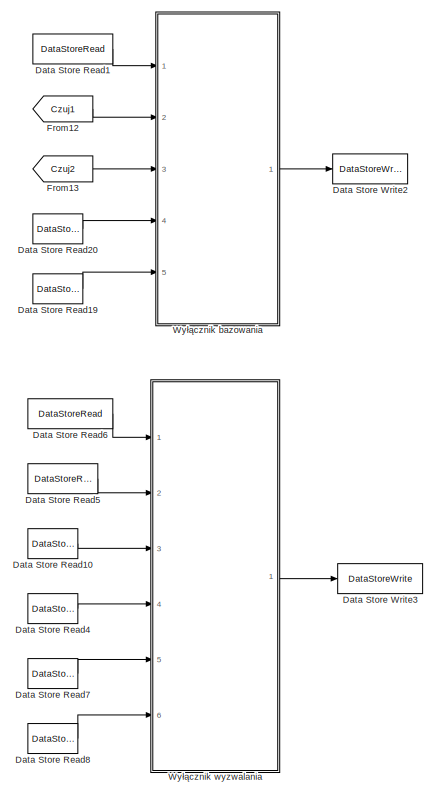
[diagram: root canvas - part 1/4, top right region]
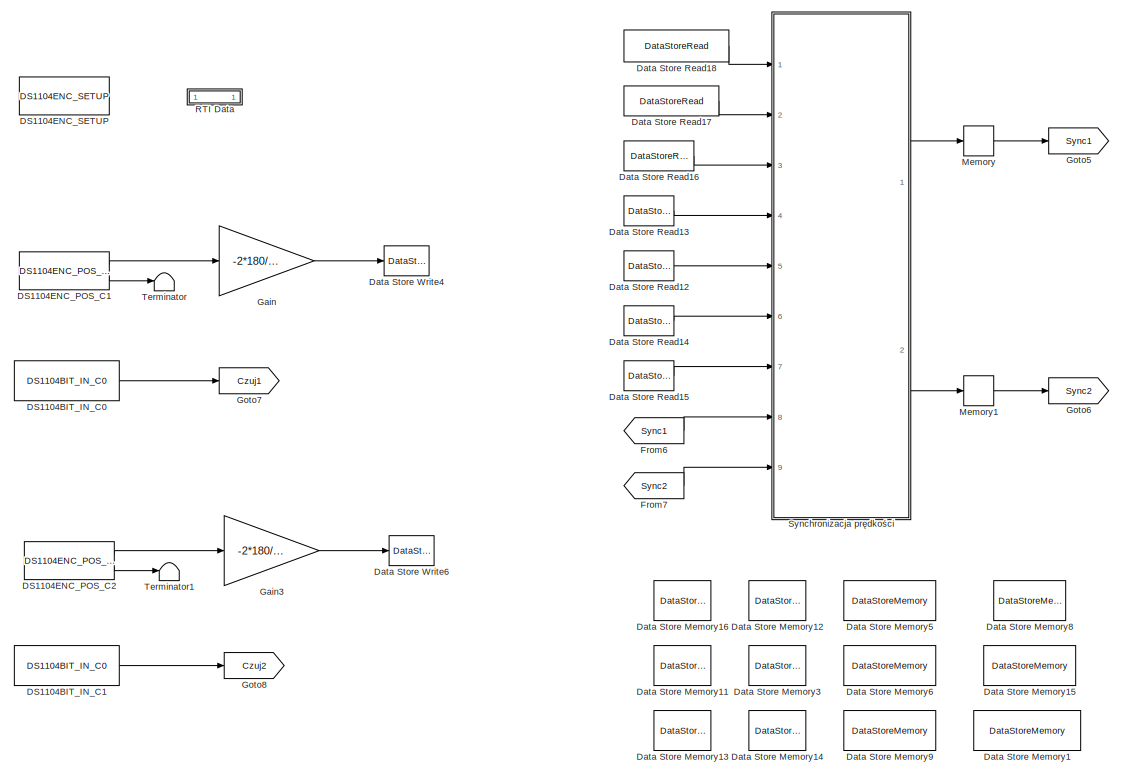
[diagram: root canvas - part 2/4, top center region]
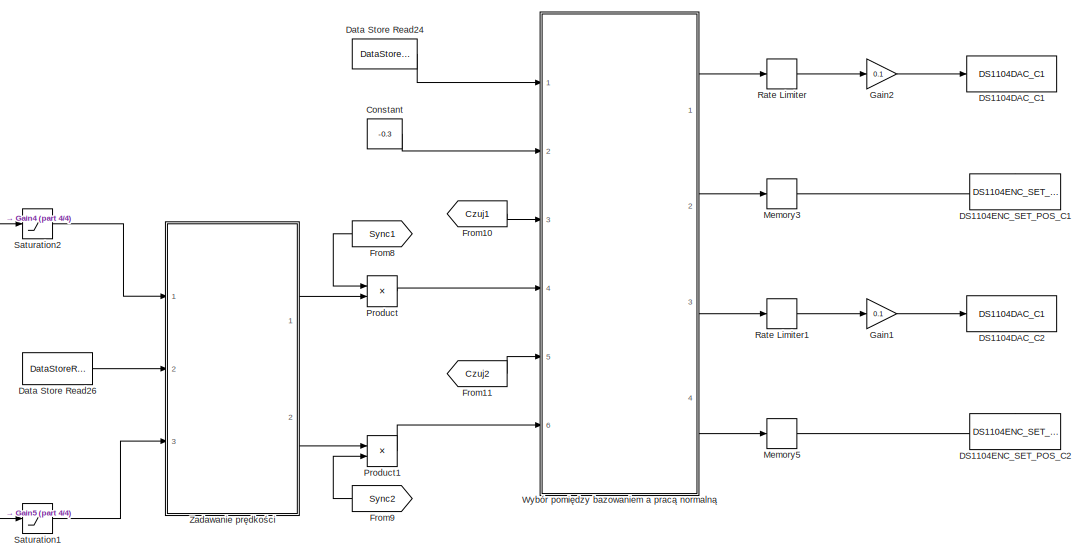
[diagram: root canvas - part 3/4, bottom right region]
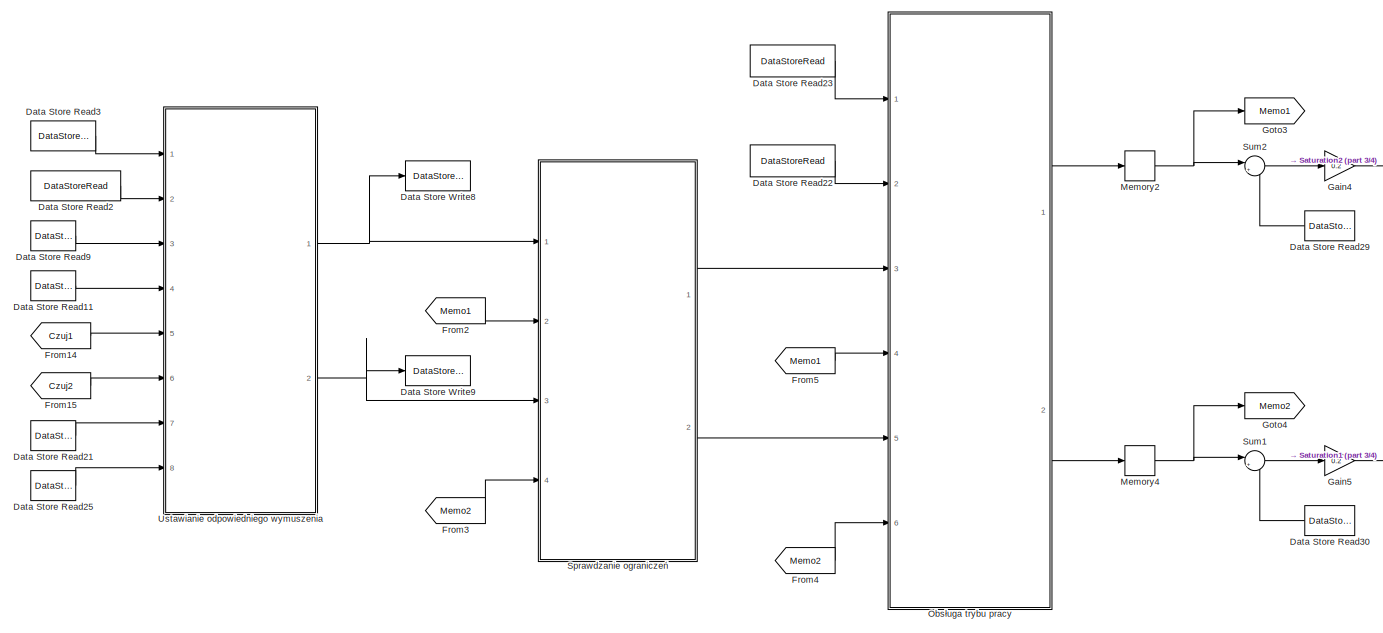
[diagram: root canvas - part 4/4, bottom left region]
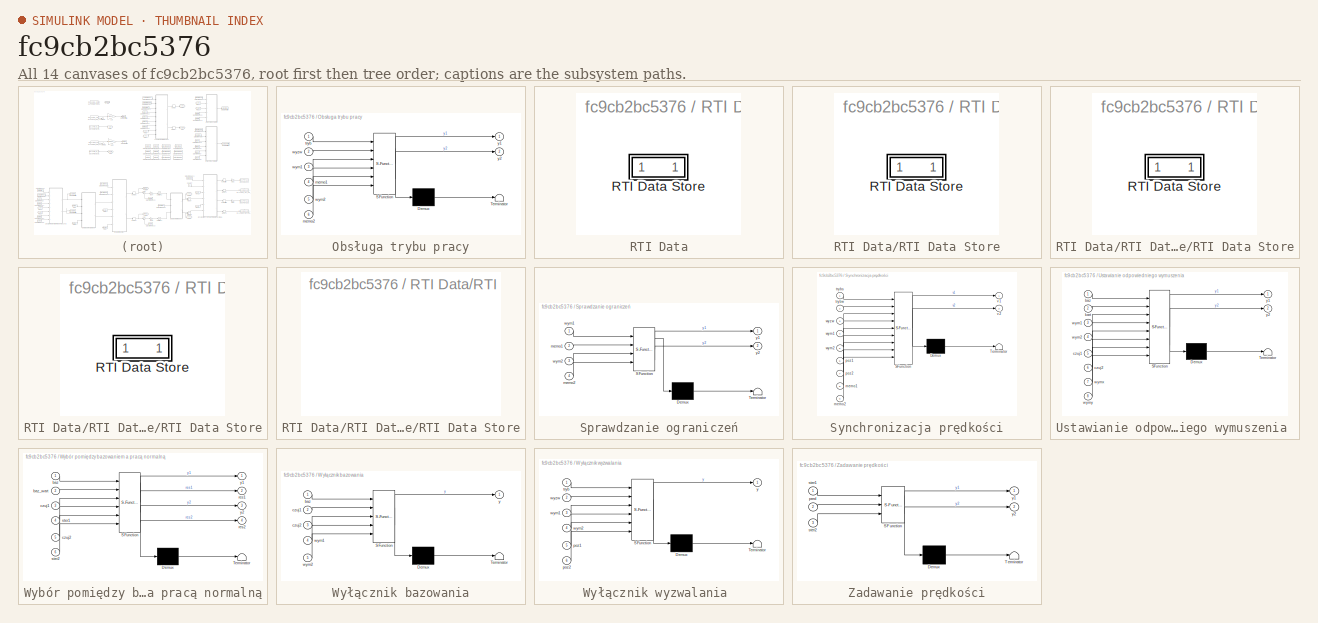
[diagram: thumbnail index - all 14 canvases of the model, root first then tree order]
MODEL slx_fc9cb2bc5376
KIND model
CONFIG AbsTol = auto
CONFIG FixedStep = 0.001
CONFIG MaxStep = auto
CONFIG MinStep = auto
CONFIG PostLoadFcn = , if any(exist('dsrtsu_mdlpostloadfcn', 'file') == [2, 3, 6]), try dsrtsu_mdlpostloadfcn('Execute', bdroot); catch fprintf('Error in PostLoadFcn (dsrtsu_mdlpostloadfcn) for model "%s":\n %s\n', bdroot, lasterr); end, end, \n
CONFIG RelTol = 1e-3
CONFIG SampleTimeConstraint = Unconstrained
CONFIG Solver = ode1
CONFIG SolverMode = Auto
CONFIG SolverName = ode1
CONFIG StartTime = 0.0
CONFIG StopTime = Inf
BLOCK [Constant] Constant
  Value = -0.3
BLOCK [Reference] DS1104BIT_IN_C0  REF=rtilib1104/DS1104 MASTER PPC/DS1104BIT_IN_C0
  ChannelNo = 0
  DSProperties = struct('RTI',struct('Version',uint32(1),'BlockType',struct('isSLSource',uint8(1),'isSLSink',uint8(0),'isHWSource',uint8(1),'isHWSink',uint8(0),'isSetup',uint8(0),'isInline',uint8(1),'isNonInline',uint8(0),'isInterrupt',uint8(0),'isChannelwise',uint8(1)),'IOBoardType','DS1104MASTER','UnitType','BIT','Identifier','BITINCH','DialogType','ML','BlockSet','NONE','SlaveProcessor','NONE'))
  DialogFcn = gui1104bit_in
  Ports = [0, 1]
  Reserved1 = []
  Reserved2 = []
  Reserved3 = []
  Reserved4 = []
  SourceBlock = rtilib1104/DS1104 MASTER PPC/DS1104BIT_IN_C0
  SourceType = RTI
  UnitName = {'DS1104BIT_IN_C'}
  UnitValues = { 0 }
BLOCK [Reference] DS1104BIT_IN_C1  REF=rtilib1104/DS1104 MASTER PPC/DS1104BIT_IN_C0
  ChannelNo = 1
  DSProperties = struct('RTI',struct('Version',uint32(1),'BlockType',struct('isSLSource',uint8(1),'isSLSink',uint8(0),'isHWSource',uint8(1),'isHWSink',uint8(0),'isSetup',uint8(0),'isInline',uint8(1),'isNonInline',uint8(0),'isInterrupt',uint8(0),'isChannelwise',uint8(1)),'IOBoardType','DS1104MASTER','UnitType','BIT','Identifier','BITINCH','DialogType','ML','BlockSet','NONE','SlaveProcessor','NONE'))
  DialogFcn = gui1104bit_in
  Ports = [0, 1]
  Reserved1 = []
  Reserved2 = []
  Reserved3 = []
  Reserved4 = []
  SourceBlock = rtilib1104/DS1104 MASTER PPC/DS1104BIT_IN_C0
  SourceType = RTI
  UnitName = {'DS1104BIT_IN_C'}
  UnitValues = {1}
BLOCK [Reference] DS1104DAC_C1  REF=rtilib1104/DS1104 MASTER PPC/DS1104DAC_C1
  ChannelNo = 1
  DSProperties = struct('RTI',struct('Version',uint32(1),'BlockType',struct('isSLSource',uint8(0),'isSLSink',uint8(1),'isHWSource',uint8(0),'isHWSink',uint8(1),'isSetup',uint8(0),'isInline',uint8(1),'isNonInline',uint8(0),'isInterrupt',uint8(0),'isChannelwise',uint8(1)),'IOBoardType','DS1104MASTER','UnitType','DAC','Identifier','DAC','DialogType','ML','BlockSet','NONE','SlaveProcessor','NONE'))
  DialogFcn = gui1104dac
  InitValue = 0
  Ports = [1]
  Reserved1 = []
  Reserved2 = []
  Reserved3 = []
  Reserved4 = []
  SourceBlock = rtilib1104/DS1104 MASTER PPC/DS1104DAC_C1
  SourceType = RTI
  TermMode = 0
  TermValue = 0
  UnitName = { 'DS1104DAC_C'}
  UnitValues = { 1 }
BLOCK [Reference] DS1104DAC_C2  REF=rtilib1104/DS1104 MASTER PPC/DS1104DAC_C1
  ChannelNo = 2
  DSProperties = struct('RTI',struct('Version',uint32(1),'BlockType',struct('isSLSource',uint8(0),'isSLSink',uint8(1),'isHWSource',uint8(0),'isHWSink',uint8(1),'isSetup',uint8(0),'isInline',uint8(1),'isNonInline',uint8(0),'isInterrupt',uint8(0),'isChannelwise',uint8(1)),'IOBoardType','DS1104MASTER','UnitType','DAC','Identifier','DAC','DialogType','ML','BlockSet','NONE','SlaveProcessor','NONE'))
  DialogFcn = gui1104dac
  InitValue = 0
  Ports = [1]
  Reserved1 = []
  Reserved2 = []
  Reserved3 = []
  Reserved4 = []
  SourceBlock = rtilib1104/DS1104 MASTER PPC/DS1104DAC_C1
  SourceType = RTI
  TermMode = 0
  TermValue = 0
  UnitName = { 'DS1104DAC_C'}
  UnitValues = {2}
BLOCK [Reference] DS1104ENC_POS_C1  REF=rtilib1104/DS1104 MASTER PPC/DS1104ENC_POS_C1
  ChannelNo = 1
  DSProperties = struct('RTI',struct('Version',uint32(1),'BlockType',struct('isSLSource',uint8(1),'isSLSink',uint8(0),'isHWSource',uint8(1),'isHWSink',uint8(0),'isSetup',uint8(0),'isInline',uint8(1),'isNonInline',uint8(0),'isInterrupt',uint8(0),'isChannelwise',uint8(1)),'IOBoardType','DS1104MASTER','UnitType','ENC','Identifier','ENCPOSCH','DialogType','ML','BlockSet','NONE','SlaveProcessor','NONE'))
  DialogFcn = gui1104enc_pos
  Ports = [0, 2]
  PosValue = 0
  Reserved1 = []
  Reserved2 = []
  Reserved3 = []
  Reserved4 = []
  SourceBlock = rtilib1104/DS1104 MASTER PPC/DS1104ENC_POS_C1
  SourceType = RTI
  UnitName = {'DS1104ENC_POS_C'}
  UnitValues = { 1 }
BLOCK [Reference] DS1104ENC_POS_C2  REF=rtilib1104/DS1104 MASTER PPC/DS1104ENC_POS_C1
  ChannelNo = 2
  DSProperties = struct('RTI',struct('Version',uint32(1),'BlockType',struct('isSLSource',uint8(1),'isSLSink',uint8(0),'isHWSource',uint8(1),'isHWSink',uint8(0),'isSetup',uint8(0),'isInline',uint8(1),'isNonInline',uint8(0),'isInterrupt',uint8(0),'isChannelwise',uint8(1)),'IOBoardType','DS1104MASTER','UnitType','ENC','Identifier','ENCPOSCH','DialogType','ML','BlockSet','NONE','SlaveProcessor','NONE'))
  DialogFcn = gui1104enc_pos
  Ports = [0, 2]
  PosValue = 0
  Reserved1 = []
  Reserved2 = []
  Reserved3 = []
  Reserved4 = []
  SourceBlock = rtilib1104/DS1104 MASTER PPC/DS1104ENC_POS_C1
  SourceType = RTI
  UnitName = {'DS1104ENC_POS_C'}
  UnitValues = {2}
BLOCK [Reference] DS1104ENC_SETUP  REF=rtilib1104/DS1104 MASTER PPC/DS1104ENC_SETUP
  DSProperties = struct('RTI',struct('Version',uint32(1),'BlockType',struct('isSLSource',uint8(0),'isSLSink',uint8(0),'isHWSource',uint8(0),'isHWSink',uint8(0),'isSetup',uint8(0),'isInline',uint8(1),'isNonInline',uint8(0),'isInterrupt',uint8(0),'isChannelwise',uint8(0)),'IOBoardType','DS1104MASTER','UnitType','ENC','Identifier','ENCSETUP','DialogType','ML','BlockSet','NONE','SlaveProcessor','NONE'))
  DialogFcn = gui1104enc_setup
  Ports = []
  Reserved1 = []
  Reserved2 = []
  Reserved3 = []
  Reserved4 = []
  SignalType = [0 0]
  SourceBlock = rtilib1104/DS1104 MASTER PPC/DS1104ENC_SETUP
  SourceType = RTI
  UnitName = {'DS1104ENC_SETUP'}
  UnitValues = { [] }
BLOCK [Reference] DS1104ENC_SET_POS_C1  REF=rtilib1104/DS1104 MASTER PPC/DS1104ENC_SET_POS_C1
  ChannelNo = 1
  DSProperties = struct('RTI',struct('Version',uint32(1),'BlockType',struct('isSLSource',uint8(0),'isSLSink',uint8(1),'isHWSource',uint8(0),'isHWSink',uint8(1),'isSetup',uint8(0),'isInline',uint8(1),'isNonInline',uint8(0),'isInterrupt',uint8(0),'isChannelwise',uint8(1)),'IOBoardType','DS1104MASTER','UnitType','ENC','Identifier','ENCRESET','DialogType','ML','BlockSet','NONE','SlaveProcessor','NONE'))
  DialogFcn = gui1104enc_set_pos
  Ports = [0, 0, 0, 1]
  PosValue = 0
  Reserved1 = []
  Reserved2 = []
  Reserved3 = []
  Reserved4 = []
  SourceBlock = rtilib1104/DS1104 MASTER PPC/DS1104ENC_SET_POS_C1
  SourceType = RTI
  UnitName = {'DS1104ENC_SET_POS_C'}
  UnitValues = { 1 }
BLOCK [Reference] DS1104ENC_SET_POS_C2  REF=rtilib1104/DS1104 MASTER PPC/DS1104ENC_SET_POS_C1
  ChannelNo = 2
  DSProperties = struct('RTI',struct('Version',uint32(1),'BlockType',struct('isSLSource',uint8(0),'isSLSink',uint8(1),'isHWSource',uint8(0),'isHWSink',uint8(1),'isSetup',uint8(0),'isInline',uint8(1),'isNonInline',uint8(0),'isInterrupt',uint8(0),'isChannelwise',uint8(1)),'IOBoardType','DS1104MASTER','UnitType','ENC','Identifier','ENCRESET','DialogType','ML','BlockSet','NONE','SlaveProcessor','NONE'))
  DialogFcn = gui1104enc_set_pos
  Ports = [0, 0, 0, 1]
  PosValue = 0
  Reserved1 = []
  Reserved2 = []
  Reserved3 = []
  Reserved4 = []
  SourceBlock = rtilib1104/DS1104 MASTER PPC/DS1104ENC_SET_POS_C1
  SourceType = RTI
  UnitName = {'DS1104ENC_SET_POS_C'}
  UnitValues = {2}
BLOCK [DataStoreMemory] Data Store Memory1
  DataStoreName = Tryb_synchroniczny
  ReadBeforeWriteMsg = warning
  WriteAfterReadMsg = warning
  WriteAfterWriteMsg = warning
BLOCK [DataStoreMemory] Data Store Memory11
  DataStoreName = Wym1
  ReadBeforeWriteMsg = warning
  WriteAfterReadMsg = warning
  WriteAfterWriteMsg = warning
BLOCK [DataStoreMemory] Data Store Memory12
  DataStoreName = WymY
  ReadBeforeWriteMsg = warning
  WriteAfterReadMsg = warning
  WriteAfterWriteMsg = warning
BLOCK [DataStoreMemory] Data Store Memory13
  DataStoreName = Poz1
  ReadBeforeWriteMsg = warning
  WriteAfterReadMsg = warning
  WriteAfterWriteMsg = warning
BLOCK [DataStoreMemory] Data Store Memory14
  DataStoreName = Poz2
  ReadBeforeWriteMsg = warning
  WriteAfterReadMsg = warning
  WriteAfterWriteMsg = warning
BLOCK [DataStoreMemory] Data Store Memory15
  DataStoreName = Poz_kartezjanskie
  ReadBeforeWriteMsg = warning
  WriteAfterReadMsg = warning
  WriteAfterWriteMsg = warning
BLOCK [DataStoreMemory] Data Store Memory16
  DataStoreName = WymX
  ReadBeforeWriteMsg = warning
  WriteAfterReadMsg = warning
  WriteAfterWriteMsg = warning
BLOCK [DataStoreMemory] Data Store Memory3
  DataStoreName = Wym2
  ReadBeforeWriteMsg = warning
  WriteAfterReadMsg = warning
  WriteAfterWriteMsg = warning
BLOCK [DataStoreMemory] Data Store Memory5
  DataStoreName = Bazowanie
  ReadBeforeWriteMsg = warning
  WriteAfterReadMsg = warning
  WriteAfterWriteMsg = warning
BLOCK [DataStoreMemory] Data Store Memory6
  DataStoreName = Tryb_wyzwalany
  ReadBeforeWriteMsg = warning
  WriteAfterReadMsg = warning
  WriteAfterWriteMsg = warning
BLOCK [DataStoreMemory] Data Store Memory8
  DataStoreName = Predkosc
  ReadBeforeWriteMsg = warning
  WriteAfterReadMsg = warning
  WriteAfterWriteMsg = warning
BLOCK [DataStoreMemory] Data Store Memory9
  DataStoreName = Wyzwalanie
  ReadBeforeWriteMsg = warning
  WriteAfterReadMsg = warning
  WriteAfterWriteMsg = warning
BLOCK [DataStoreRead] Data Store Read1
  DataStoreName = Bazowanie
  Ports = [0, 1]
BLOCK [DataStoreRead] Data Store Read10
  DataStoreName = Wym1
  Ports = [0, 1]
BLOCK [DataStoreRead] Data Store Read11
  DataStoreName = Wym2
  Ports = [0, 1]
BLOCK [DataStoreRead] Data Store Read12
  DataStoreName = Wym2
  Ports = [0, 1]
BLOCK [DataStoreRead] Data Store Read13
  DataStoreName = Wym1
  Ports = [0, 1]
BLOCK [DataStoreRead] Data Store Read14
  DataStoreName = Poz1
  Ports = [0, 1]
BLOCK [DataStoreRead] Data Store Read15
  DataStoreName = Poz2
  Ports = [0, 1]
BLOCK [DataStoreRead] Data Store Read16
  DataStoreName = Wyzwalanie
  Ports = [0, 1]
BLOCK [DataStoreRead] Data Store Read17
  DataStoreName = Tryb_wyzwalany
  Ports = [0, 1]
BLOCK [DataStoreRead] Data Store Read18
  DataStoreName = Tryb_synchroniczny
  Ports = [0, 1]
BLOCK [DataStoreRead] Data Store Read19
  DataStoreName = Wym2
  Ports = [0, 1]
BLOCK [DataStoreRead] Data Store Read2
  DataStoreName = Poz_kartezjanskie
  Ports = [0, 1]
BLOCK [DataStoreRead] Data Store Read20
  DataStoreName = Wym1
  Ports = [0, 1]
BLOCK [DataStoreRead] Data Store Read21
  DataStoreName = WymX
  Ports = [0, 1]
BLOCK [DataStoreRead] Data Store Read22
  DataStoreName = Wyzwalanie
  Ports = [0, 1]
BLOCK [DataStoreRead] Data Store Read23
  DataStoreName = Tryb_wyzwalany
  Ports = [0, 1]
BLOCK [DataStoreRead] Data Store Read24
  DataStoreName = Bazowanie
  Ports = [0, 1]
BLOCK [DataStoreRead] Data Store Read25
  DataStoreName = WymY
  Ports = [0, 1]
BLOCK [DataStoreRead] Data Store Read26
  DataStoreName = Predkosc
  Ports = [0, 1]
BLOCK [DataStoreRead] Data Store Read29
  DataStoreName = Poz1
  Ports = [0, 1]
BLOCK [DataStoreRead] Data Store Read3
  DataStoreName = Bazowanie
  Ports = [0, 1]
BLOCK [DataStoreRead] Data Store Read30
  DataStoreName = Poz2
  Ports = [0, 1]
BLOCK [DataStoreRead] Data Store Read4
  DataStoreName = Wym2
  Ports = [0, 1]
BLOCK [DataStoreRead] Data Store Read5
  DataStoreName = Wyzwalanie
  Ports = [0, 1]
BLOCK [DataStoreRead] Data Store Read6
  DataStoreName = Tryb_wyzwalany
  Ports = [0, 1]
BLOCK [DataStoreRead] Data Store Read7
  DataStoreName = Poz1
  Ports = [0, 1]
BLOCK [DataStoreRead] Data Store Read8
  DataStoreName = Poz2
  Ports = [0, 1]
BLOCK [DataStoreRead] Data Store Read9
  DataStoreName = Wym1
  Ports = [0, 1]
BLOCK [DataStoreWrite] Data Store Write2
  DataStoreName = Bazowanie
  Ports = [1]
BLOCK [DataStoreWrite] Data Store Write3
  DataStoreName = Wyzwalanie
  Ports = [1]
BLOCK [DataStoreWrite] Data Store Write4
  DataStoreName = Poz1
  Ports = [1]
BLOCK [DataStoreWrite] Data Store Write6
  DataStoreName = Poz2
  Ports = [1]
BLOCK [DataStoreWrite] Data Store Write8
  DataStoreName = Wym1
  Ports = [1]
BLOCK [DataStoreWrite] Data Store Write9
  DataStoreName = Wym2
  Ports = [1]
BLOCK [From] From10
  GotoTag = Czuj1
  TagVisibility = global
BLOCK [From] From11
  GotoTag = Czuj2
  TagVisibility = global
BLOCK [From] From12
  GotoTag = Czuj1
  TagVisibility = global
BLOCK [From] From13
  GotoTag = Czuj2
  TagVisibility = global
BLOCK [From] From14
  GotoTag = Czuj1
  TagVisibility = global
BLOCK [From] From15
  GotoTag = Czuj2
  TagVisibility = global
BLOCK [From] From2
  GotoTag = Memo1
  TagVisibility = global
BLOCK [From] From3
  GotoTag = Memo2
  TagVisibility = global
BLOCK [From] From4
  GotoTag = Memo2
  TagVisibility = global
BLOCK [From] From5
  GotoTag = Memo1
  TagVisibility = global
BLOCK [From] From6
  GotoTag = Sync1
  TagVisibility = global
BLOCK [From] From7
  GotoTag = Sync2
  TagVisibility = global
BLOCK [From] From8
  GotoTag = Sync1
  TagVisibility = global
BLOCK [From] From9
  GotoTag = Sync2
  TagVisibility = global
BLOCK [Gain] Gain
  Gain = -2*180/500/128
  OutDataTypeStr = Inherit: Inherit via internal rule
  ParamDataTypeStr = Inherit: Inherit via internal rule
  SaturateOnIntegerOverflow = off
BLOCK [Gain] Gain1
  Gain = 0.1
  OutDataTypeStr = Inherit: Inherit via internal rule
  ParamDataTypeStr = Inherit: Inherit via internal rule
  SaturateOnIntegerOverflow = off
BLOCK [Gain] Gain2
  Gain = 0.1
  OutDataTypeStr = Inherit: Inherit via internal rule
  ParamDataTypeStr = Inherit: Inherit via internal rule
  SaturateOnIntegerOverflow = off
BLOCK [Gain] Gain3
  Gain = -2*180/500/128
  OutDataTypeStr = Inherit: Inherit via internal rule
  ParamDataTypeStr = Inherit: Inherit via internal rule
  SaturateOnIntegerOverflow = off
BLOCK [Gain] Gain4
  Gain = 0.2
  OutDataTypeStr = Inherit: Inherit via internal rule
  ParamDataTypeStr = Inherit: Inherit via internal rule
  SaturateOnIntegerOverflow = off
BLOCK [Gain] Gain5
  Gain = 0.2
  OutDataTypeStr = Inherit: Inherit via internal rule
  ParamDataTypeStr = Inherit: Inherit via internal rule
  SaturateOnIntegerOverflow = off
BLOCK [Goto] Goto3
  GotoTag = Memo1
  TagVisibility = global
BLOCK [Goto] Goto4
  GotoTag = Memo2
  TagVisibility = global
BLOCK [Goto] Goto5
  GotoTag = Sync1
  TagVisibility = global
BLOCK [Goto] Goto6
  GotoTag = Sync2
  TagVisibility = global
BLOCK [Goto] Goto7
  GotoTag = Czuj1
  TagVisibility = global
BLOCK [Goto] Goto8
  GotoTag = Czuj2
  TagVisibility = global
BLOCK [Memory] Memory
  X0 = 1
BLOCK [Memory] Memory1
  X0 = 1
BLOCK [Memory] Memory2
BLOCK [Memory] Memory3
  X0 = 1
BLOCK [Memory] Memory4
BLOCK [Memory] Memory5
  X0 = 1
BLOCK [SubSystem] Obsługa trybu pracy
  ErrorFcn = Stateflow.Translate.translate
  PermitHierarchicalResolution = ExplicitOnly
  Ports = [6, 2]
  RequestExecContextInheritance = off
  SFBlockType = MATLAB Function
  TreatAsAtomicUnit = on
BLOCK [Demux] Obsługa trybu pracy/ Demux 
  DisplayOption = bar
  Outputs = 1
  Ports = [1, 1]
BLOCK [S-Function] Obsługa trybu pracy/ SFunction 
  EnableBusSupport = on
  FunctionName = sf_sfun
  PortCounts = [6 3]
  Ports = [6, 3]
  Tag = Stateflow S-Function Scara_model 16
BLOCK [Terminator] Obsługa trybu pracy/ Terminator 
BLOCK [Inport] Obsługa trybu pracy/memo1
  IconDisplay = Port number
  Port = 4
BLOCK [Inport] Obsługa trybu pracy/memo2
  IconDisplay = Port number
  Port = 6
BLOCK [Inport] Obsługa trybu pracy/tryb
  IconDisplay = Port number
BLOCK [Inport] Obsługa trybu pracy/wym1
  IconDisplay = Port number
  Port = 3
BLOCK [Inport] Obsługa trybu pracy/wym2
  IconDisplay = Port number
  Port = 5
BLOCK [Inport] Obsługa trybu pracy/wyzw
  IconDisplay = Port number
  Port = 2
BLOCK [Outport] Obsługa trybu pracy/y1
  IconDisplay = Port number
BLOCK [Outport] Obsługa trybu pracy/y2
  IconDisplay = Port number
  Port = 2
BLOCK [Product] Product
  InputSameDT = off
  OutDataTypeStr = Inherit: Inherit via internal rule
  Ports = [2, 1]
  RndMeth = Floor
  SaturateOnIntegerOverflow = off
BLOCK [Product] Product1
  InputSameDT = off
  OutDataTypeStr = Inherit: Inherit via internal rule
  Ports = [2, 1]
  RndMeth = Floor
  SaturateOnIntegerOverflow = off
BLOCK [SubSystem] RTI Data
  CopyFcn = if exist('rtidc'), try,  rtidc('DataHostBlockClbCopy', gcbh); catch, disp(['Warning: ''CopyFcn'' for RTI Data block failed: ' lasterr]); end, end,
  DeleteFcn = if exist('rtidc'), try,  rtidc('DataHostBlockClbDelete', gcbh); catch, disp(['Warning: ''DeleteFcn'' for RTI Data block failed: ' lasterr]); end, end,
  LoadFcn = if exist('rtidc'), try,  rtidc('DataHostBlockClbLoad', gcbh); catch, disp(['Warning: ''LoadFcn'' for RTI Data block failed: ' lasterr]); end, end,
  ModelCloseFcn = if exist('rtidc'), try,  rtidc('DataHostBlockClbModelClose', gcbh); catch, disp(['Warning: ''ModelCloseFcn'' for RTI Data block failed: ' lasterr]); end, end,
  NameChangeFcn = if exist('rtidc'), try,  rtidc('DataHostBlockClbNameChange', gcbh); catch, disp(['Warning: ''NameChangeFcn'' for RTI Data block failed: ' lasterr]); end, end,
  Ports = []
  PostSaveFcn = if exist('rtidc'), try,  rtidc('DataHostBlockClbPostSave', gcbh); catch, disp(['Warning: ''PostSaveFcn'' for RTI Data block failed: ' lasterr]); end, end,
  PreSaveFcn = if exist('rtidc'), try,  rtidc('DataHostBlockClbPreSave', gcbh); catch, disp(['Warning: ''PreSaveFcn'' for RTI Data block failed: ' lasterr]); end, end,
  RequestExecContextInheritance = off
  Tag = struct('RTIDataServer',struct('RTIDataServerVs','2','RTIModelDescription','struct(''main'',''Scara_model'',''sub'','''',''isMp'',0)'))
BLOCK [SubSystem] RTI Data/RTI Data Store
  Ports = []
  RequestExecContextInheritance = off
  Tag = struct('private',struct('version',struct('dsVer',uint32(2),'dsVerCreation',uint32(2),'RTI',struct('ver','7.4','type','RTI1104')),'access',struct('type','Model','isPerm',1,'created',['08-Dec-2021 13:39:11'],'modified',['15-Dec-2021 14:24:32'],'location','')),'public',struct('main',struct('data',[]),'sub',struct('name',{{'Scara_model'}},'data',{{struct('TH',struct('thTaskInfo',struct('taskType',{'TI...<+888ch>
BLOCK [SubSystem] RTI Data/RTI Data Store/RTI Data Store
  Ports = []
  RequestExecContextInheritance = off
BLOCK [SubSystem] RTI Data/RTI Data Store/RTI Data Store/RTI Data Store
  Ports = []
  RequestExecContextInheritance = off
BLOCK [SubSystem] RTI Data/RTI Data Store/RTI Data Store/RTI Data Store/RTI Data Store
  Ports = []
  RequestExecContextInheritance = off
BLOCK [RateLimiter] Rate Limiter
  FallingSlewLimit = -50
  RisingSlewLimit = 50
  SampleTimeMode = inherited
BLOCK [RateLimiter] Rate Limiter1
  FallingSlewLimit = -50
  RisingSlewLimit = 50
  SampleTimeMode = inherited
BLOCK [Saturate] Saturation1
  InputPortMap = u0
  LowerLimit = -3
  Ports = [1, 1]
  UpperLimit = 3
BLOCK [Saturate] Saturation2
  InputPortMap = u0
  LowerLimit = -3
  Ports = [1, 1]
  UpperLimit = 3
BLOCK [SubSystem] Sprawdzanie ograniczeń
  ErrorFcn = Stateflow.Translate.translate
  PermitHierarchicalResolution = ExplicitOnly
  Ports = [4, 2]
  RequestExecContextInheritance = off
  SFBlockType = MATLAB Function
  TreatAsAtomicUnit = on
BLOCK [Demux] Sprawdzanie ograniczeń/ Demux 
  DisplayOption = bar
  Outputs = 1
  Ports = [1, 1]
BLOCK [S-Function] Sprawdzanie ograniczeń/ SFunction 
  EnableBusSupport = on
  FunctionName = sf_sfun
  PortCounts = [4 3]
  Ports = [4, 3]
  Tag = Stateflow S-Function Scara_model 14
BLOCK [Terminator] Sprawdzanie ograniczeń/ Terminator 
BLOCK [Inport] Sprawdzanie ograniczeń/memo1
  IconDisplay = Port number
  Port = 2
BLOCK [Inport] Sprawdzanie ograniczeń/memo2
  IconDisplay = Port number
  Port = 4
BLOCK [Inport] Sprawdzanie ograniczeń/wym1
  IconDisplay = Port number
BLOCK [Inport] Sprawdzanie ograniczeń/wym2
  IconDisplay = Port number
  Port = 3
BLOCK [Outport] Sprawdzanie ograniczeń/y1
  IconDisplay = Port number
BLOCK [Outport] Sprawdzanie ograniczeń/y2
  IconDisplay = Port number
  Port = 2
BLOCK [Sum] Sum1
  IconShape = round
  InputSameDT = off
  Inputs = |+-
  OutDataTypeStr = Inherit: Inherit via internal rule
  Ports = [2, 1]
  SaturateOnIntegerOverflow = off
BLOCK [Sum] Sum2
  IconShape = round
  InputSameDT = off
  Inputs = |+-
  OutDataTypeStr = Inherit: Inherit via internal rule
  Ports = [2, 1]
  SaturateOnIntegerOverflow = off
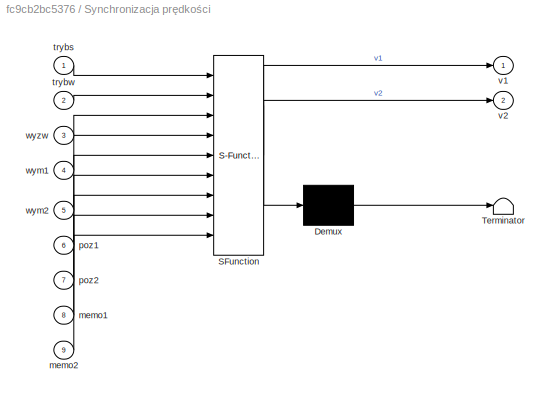
BLOCK [SubSystem] Synchronizacja prędkości
  ErrorFcn = Stateflow.Translate.translate
  PermitHierarchicalResolution = ExplicitOnly
  Ports = [9, 2]
  RequestExecContextInheritance = off
  SFBlockType = MATLAB Function
  TreatAsAtomicUnit = on
BLOCK [Demux] Synchronizacja prędkości/ Demux 
  DisplayOption = bar
  Outputs = 1
  Ports = [1, 1]
BLOCK [S-Function] Synchronizacja prędkości/ SFunction 
  EnableBusSupport = on
  FunctionName = sf_sfun
  PortCounts = [9 3]
  Ports = [9, 3]
  Tag = Stateflow S-Function Scara_model 11
BLOCK [Terminator] Synchronizacja prędkości/ Terminator 
BLOCK [Inport] Synchronizacja prędkości/memo1
  IconDisplay = Port number
  Port = 8
BLOCK [Inport] Synchronizacja prędkości/memo2
  IconDisplay = Port number
  Port = 9
BLOCK [Inport] Synchronizacja prędkości/poz1
  IconDisplay = Port number
  Port = 6
BLOCK [Inport] Synchronizacja prędkości/poz2
  IconDisplay = Port number
  Port = 7
BLOCK [Inport] Synchronizacja prędkości/trybs
  IconDisplay = Port number
BLOCK [Inport] Synchronizacja prędkości/trybw
  IconDisplay = Port number
  Port = 2
BLOCK [Outport] Synchronizacja prędkości/v1
  IconDisplay = Port number
BLOCK [Outport] Synchronizacja prędkości/v2
  IconDisplay = Port number
  Port = 2
BLOCK [Inport] Synchronizacja prędkości/wym1
  IconDisplay = Port number
  Port = 4
BLOCK [Inport] Synchronizacja prędkości/wym2
  IconDisplay = Port number
  Port = 5
BLOCK [Inport] Synchronizacja prędkości/wyzw
  IconDisplay = Port number
  Port = 3
BLOCK [Terminator] Terminator
BLOCK [Terminator] Terminator1
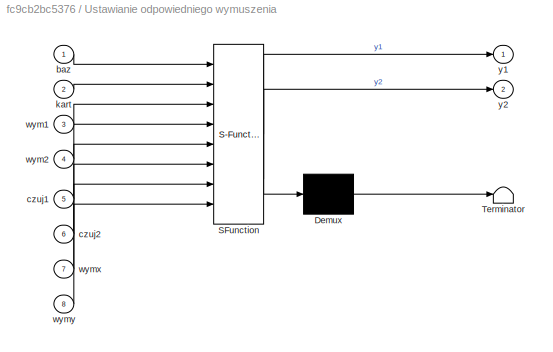
BLOCK [SubSystem] Ustawianie odpowiedniego wymuszenia 
  ErrorFcn = Stateflow.Translate.translate
  PermitHierarchicalResolution = ExplicitOnly
  Ports = [8, 2]
  RequestExecContextInheritance = off
  SFBlockType = MATLAB Function
  TreatAsAtomicUnit = on
BLOCK [Demux] Ustawianie odpowiedniego wymuszenia / Demux 
  DisplayOption = bar
  Outputs = 1
  Ports = [1, 1]
BLOCK [S-Function] Ustawianie odpowiedniego wymuszenia / SFunction 
  EnableBusSupport = on
  FunctionName = sf_sfun
  PortCounts = [8 3]
  Ports = [8, 3]
  Tag = Stateflow S-Function Scara_model 13
BLOCK [Terminator] Ustawianie odpowiedniego wymuszenia / Terminator 
BLOCK [Inport] Ustawianie odpowiedniego wymuszenia /baz
  IconDisplay = Port number
BLOCK [Inport] Ustawianie odpowiedniego wymuszenia /czuj1
  IconDisplay = Port number
  Port = 5
BLOCK [Inport] Ustawianie odpowiedniego wymuszenia /czuj2
  IconDisplay = Port number
  Port = 6
BLOCK [Inport] Ustawianie odpowiedniego wymuszenia /kart
  IconDisplay = Port number
  Port = 2
BLOCK [Inport] Ustawianie odpowiedniego wymuszenia /wym1
  IconDisplay = Port number
  Port = 3
BLOCK [Inport] Ustawianie odpowiedniego wymuszenia /wym2
  IconDisplay = Port number
  Port = 4
BLOCK [Inport] Ustawianie odpowiedniego wymuszenia /wymx
  IconDisplay = Port number
  Port = 7
BLOCK [Inport] Ustawianie odpowiedniego wymuszenia /wymy
  IconDisplay = Port number
  Port = 8
BLOCK [Outport] Ustawianie odpowiedniego wymuszenia /y1
  IconDisplay = Port number
BLOCK [Outport] Ustawianie odpowiedniego wymuszenia /y2
  IconDisplay = Port number
  Port = 2
BLOCK [SubSystem] Wybór pomiędzy bazowaniem a pracą normalną
  ErrorFcn = Stateflow.Translate.translate
  PermitHierarchicalResolution = ExplicitOnly
  Ports = [6, 4]
  RequestExecContextInheritance = off
  SFBlockType = MATLAB Function
  TreatAsAtomicUnit = on
BLOCK [Demux] Wybór pomiędzy bazowaniem a pracą normalną/ Demux 
  DisplayOption = bar
  Outputs = 1
  Ports = [1, 1]
BLOCK [S-Function] Wybór pomiędzy bazowaniem a pracą normalną/ SFunction 
  EnableBusSupport = on
  FunctionName = sf_sfun
  PortCounts = [6 5]
  Ports = [6, 5]
  Tag = Stateflow S-Function Scara_model 15
BLOCK [Terminator] Wybór pomiędzy bazowaniem a pracą normalną/ Terminator 
BLOCK [Inport] Wybór pomiędzy bazowaniem a pracą normalną/baz
  IconDisplay = Port number
BLOCK [Inport] Wybór pomiędzy bazowaniem a pracą normalną/baz_wart
  IconDisplay = Port number
  Port = 2
BLOCK [Inport] Wybór pomiędzy bazowaniem a pracą normalną/czuj1
  IconDisplay = Port number
  Port = 3
BLOCK [Inport] Wybór pomiędzy bazowaniem a pracą normalną/czuj2
  IconDisplay = Port number
  Port = 5
BLOCK [Outport] Wybór pomiędzy bazowaniem a pracą normalną/res1
  IconDisplay = Port number
  Port = 2
BLOCK [Outport] Wybór pomiędzy bazowaniem a pracą normalną/res2
  IconDisplay = Port number
  Port = 4
BLOCK [Inport] Wybór pomiędzy bazowaniem a pracą normalną/ster1
  IconDisplay = Port number
  Port = 4
BLOCK [Inport] Wybór pomiędzy bazowaniem a pracą normalną/ster2
  IconDisplay = Port number
  Port = 6
BLOCK [Outport] Wybór pomiędzy bazowaniem a pracą normalną/y1
  IconDisplay = Port number
BLOCK [Outport] Wybór pomiędzy bazowaniem a pracą normalną/y2
  IconDisplay = Port number
  Port = 3
BLOCK [SubSystem] Wyłącznik bazowania
  ErrorFcn = Stateflow.Translate.translate
  PermitHierarchicalResolution = ExplicitOnly
  Ports = [5, 1]
  RequestExecContextInheritance = off
  SFBlockType = MATLAB Function
  TreatAsAtomicUnit = on
BLOCK [Demux] Wyłącznik bazowania/ Demux 
  DisplayOption = bar
  Outputs = 1
  Ports = [1, 1]
BLOCK [S-Function] Wyłącznik bazowania/ SFunction 
  EnableBusSupport = on
  FunctionName = sf_sfun
  PortCounts = [5 2]
  Ports = [5, 2]
  Tag = Stateflow S-Function Scara_model 5
BLOCK [Terminator] Wyłącznik bazowania/ Terminator 
BLOCK [Inport] Wyłącznik bazowania/baz
  IconDisplay = Port number
BLOCK [Inport] Wyłącznik bazowania/czuj1
  IconDisplay = Port number
  Port = 2
BLOCK [Inport] Wyłącznik bazowania/czuj2
  IconDisplay = Port number
  Port = 3
BLOCK [Inport] Wyłącznik bazowania/wym1
  IconDisplay = Port number
  Port = 4
BLOCK [Inport] Wyłącznik bazowania/wym2
  IconDisplay = Port number
  Port = 5
BLOCK [Outport] Wyłącznik bazowania/y
  IconDisplay = Port number
BLOCK [SubSystem] Wyłącznik wyzwalania 
  ErrorFcn = Stateflow.Translate.translate
  PermitHierarchicalResolution = ExplicitOnly
  Ports = [6, 1]
  RequestExecContextInheritance = off
  SFBlockType = MATLAB Function
  TreatAsAtomicUnit = on
BLOCK [Demux] Wyłącznik wyzwalania / Demux 
  DisplayOption = bar
  Outputs = 1
  Ports = [1, 1]
BLOCK [S-Function] Wyłącznik wyzwalania / SFunction 
  EnableBusSupport = on
  FunctionName = sf_sfun
  PortCounts = [6 2]
  Ports = [6, 2]
  Tag = Stateflow S-Function Scara_model 10
BLOCK [Terminator] Wyłącznik wyzwalania / Terminator 
BLOCK [Inport] Wyłącznik wyzwalania /poz1
  IconDisplay = Port number
  Port = 5
BLOCK [Inport] Wyłącznik wyzwalania /poz2
  IconDisplay = Port number
  Port = 6
BLOCK [Inport] Wyłącznik wyzwalania /tryb
  IconDisplay = Port number
BLOCK [Inport] Wyłącznik wyzwalania /wym1
  IconDisplay = Port number
  Port = 3
BLOCK [Inport] Wyłącznik wyzwalania /wym2
  IconDisplay = Port number
  Port = 4
BLOCK [Inport] Wyłącznik wyzwalania /wyzw
  IconDisplay = Port number
  Port = 2
BLOCK [Outport] Wyłącznik wyzwalania /y
  IconDisplay = Port number
BLOCK [SubSystem] Zadawanie prędkości
  ErrorFcn = Stateflow.Translate.translate
  PermitHierarchicalResolution = ExplicitOnly
  Ports = [3, 2]
  RequestExecContextInheritance = off
  SFBlockType = MATLAB Function
  TreatAsAtomicUnit = on
BLOCK [Demux] Zadawanie prędkości/ Demux 
  DisplayOption = bar
  Outputs = 1
  Ports = [1, 1]
BLOCK [S-Function] Zadawanie prędkości/ SFunction 
  EnableBusSupport = on
  FunctionName = sf_sfun
  PortCounts = [3 3]
  Ports = [3, 3]
  Tag = Stateflow S-Function Scara_model 17
BLOCK [Terminator] Zadawanie prędkości/ Terminator 
BLOCK [Inport] Zadawanie prędkości/pred
  IconDisplay = Port number
  Port = 2
BLOCK [Inport] Zadawanie prędkości/ster1
  IconDisplay = Port number
BLOCK [Inport] Zadawanie prędkości/ster2
  IconDisplay = Port number
  Port = 3
BLOCK [Outport] Zadawanie prędkości/y1
  IconDisplay = Port number
BLOCK [Outport] Zadawanie prędkości/y2
  IconDisplay = Port number
  Port = 2
LINE Constant:1 -> Wybór pomiędzy bazowaniem a pracą normalną:2
LINE DS1104BIT_IN_C0:1 -> Goto7:1
LINE DS1104BIT_IN_C1:1 -> Goto8:1
LINE DS1104ENC_POS_C1:1 -> Gain:1
LINE DS1104ENC_POS_C1:2 -> Terminator:1
LINE DS1104ENC_POS_C2:1 -> Gain3:1
LINE DS1104ENC_POS_C2:2 -> Terminator1:1
LINE Data Store Read10:1 -> Wyłącznik wyzwalania :3
LINE Data Store Read11:1 -> Ustawianie odpowiedniego wymuszenia :4
LINE Data Store Read12:1 -> Synchronizacja prędkości:5
LINE Data Store Read13:1 -> Synchronizacja prędkości:4
LINE Data Store Read14:1 -> Synchronizacja prędkości:6
LINE Data Store Read15:1 -> Synchronizacja prędkości:7
LINE Data Store Read16:1 -> Synchronizacja prędkości:3
LINE Data Store Read17:1 -> Synchronizacja prędkości:2
LINE Data Store Read18:1 -> Synchronizacja prędkości:1
LINE Data Store Read19:1 -> Wyłącznik bazowania:5
LINE Data Store Read1:1 -> Wyłącznik bazowania:1
LINE Data Store Read20:1 -> Wyłącznik bazowania:4
LINE Data Store Read21:1 -> Ustawianie odpowiedniego wymuszenia :7
LINE Data Store Read22:1 -> Obsługa trybu pracy:2
LINE Data Store Read23:1 -> Obsługa trybu pracy:1
LINE Data Store Read24:1 -> Wybór pomiędzy bazowaniem a pracą normalną:1
LINE Data Store Read25:1 -> Ustawianie odpowiedniego wymuszenia :8
LINE Data Store Read26:1 -> Zadawanie prędkości:2
LINE Data Store Read29:1 -> Sum2:2
LINE Data Store Read2:1 -> Ustawianie odpowiedniego wymuszenia :2
LINE Data Store Read30:1 -> Sum1:2
LINE Data Store Read3:1 -> Ustawianie odpowiedniego wymuszenia :1
LINE Data Store Read4:1 -> Wyłącznik wyzwalania :4
LINE Data Store Read5:1 -> Wyłącznik wyzwalania :2
LINE Data Store Read6:1 -> Wyłącznik wyzwalania :1
LINE Data Store Read7:1 -> Wyłącznik wyzwalania :5
LINE Data Store Read8:1 -> Wyłącznik wyzwalania :6
LINE Data Store Read9:1 -> Ustawianie odpowiedniego wymuszenia :3
LINE From10:1 -> Wybór pomiędzy bazowaniem a pracą normalną:3
LINE From11:1 -> Wybór pomiędzy bazowaniem a pracą normalną:5
LINE From12:1 -> Wyłącznik bazowania:2
LINE From13:1 -> Wyłącznik bazowania:3
LINE From14:1 -> Ustawianie odpowiedniego wymuszenia :5
LINE From15:1 -> Ustawianie odpowiedniego wymuszenia :6
LINE From2:1 -> Sprawdzanie ograniczeń:2
LINE From3:1 -> Sprawdzanie ograniczeń:4
LINE From4:1 -> Obsługa trybu pracy:6
LINE From5:1 -> Obsługa trybu pracy:4
LINE From6:1 -> Synchronizacja prędkości:8
LINE From7:1 -> Synchronizacja prędkości:9
LINE From8:1 -> Product:1
LINE From9:1 -> Product1:2
LINE Gain1:1 -> DS1104DAC_C2:1
LINE Gain2:1 -> DS1104DAC_C1:1
LINE Gain3:1 -> Data Store Write6:1
LINE Gain4:1 -> Saturation2:1
LINE Gain5:1 -> Saturation1:1
LINE Gain:1 -> Data Store Write4:1
LINE Memory1:1 -> Goto6:1
NET Memory2:1 -> Goto3:1, Sum2:1
LINE Memory3:1 -> DS1104ENC_SET_POS_C1:trigger
NET Memory4:1 -> Goto4:1, Sum1:1
LINE Memory5:1 -> DS1104ENC_SET_POS_C2:trigger
LINE Memory:1 -> Goto5:1
LINE Obsługa trybu pracy:1 -> Memory2:1
LINE Obsługa trybu pracy:2 -> Memory4:1
LINE Product1:1 -> Wybór pomiędzy bazowaniem a pracą normalną:6
LINE Product:1 -> Wybór pomiędzy bazowaniem a pracą normalną:4
LINE Rate Limiter1:1 -> Gain1:1
LINE Rate Limiter:1 -> Gain2:1
LINE Saturation1:1 -> Zadawanie prędkości:3
LINE Saturation2:1 -> Zadawanie prędkości:1
LINE Sprawdzanie ograniczeń:1 -> Obsługa trybu pracy:3
LINE Sprawdzanie ograniczeń:2 -> Obsługa trybu pracy:5
LINE Sum1:1 -> Gain5:1
LINE Sum2:1 -> Gain4:1
LINE Synchronizacja prędkości:1 -> Memory:1
LINE Synchronizacja prędkości:2 -> Memory1:1
NET Ustawianie odpowiedniego wymuszenia :1 -> Data Store Write8:1, Sprawdzanie ograniczeń:1
NET Ustawianie odpowiedniego wymuszenia :2 -> Data Store Write9:1, Sprawdzanie ograniczeń:3
LINE Wybór pomiędzy bazowaniem a pracą normalną:1 -> Rate Limiter:1
LINE Wybór pomiędzy bazowaniem a pracą normalną:2 -> Memory3:1
LINE Wybór pomiędzy bazowaniem a pracą normalną:3 -> Rate Limiter1:1
LINE Wybór pomiędzy bazowaniem a pracą normalną:4 -> Memory5:1
LINE Wyłącznik bazowania:1 -> Data Store Write2:1
LINE Wyłącznik wyzwalania :1 -> Data Store Write3:1
LINE Zadawanie prędkości:1 -> Product:2
LINE Zadawanie prędkości:2 -> Product1:1
note: NET lines group one-source signal fan-out (src -> all destinations, sorted); 1:1 wires keep LINE
CHART Wyłącznik bazowania states=1 transitions=1
  STATE_LABEL 'eML_blk_kernel()'
  STATE_LABEL 'SCRIPT:\nfunction y = fcn(baz, czuj1, czuj2, wym1, wym2)\nif baz && ~czuj1 && ~czuj2 && ~wym1 && ~wym2\n    y = 0;\nelse\n    y = baz;\nend'
CHART Wyłącznik wyzwalania
 states=1 transitions=1
  STATE_LABEL 'eML_blk_kernel()'
  STATE_LABEL 'SCRIPT:\nfunction y = fcn(tryb, wyzw, wym1, wym2, poz1, poz2)\neps = 1;\nif tryb && wyzw && abs(wym1-poz1) <= eps && abs(wym2-poz2) <= eps\n    y = 0;\nelse\n    y = wyzw;\nend'
CHART Synchronizacja prędkości states=1 transitions=1
  STATE_LABEL 'eML_blk_kernel()'
  STATE_LABEL 'SCRIPT:\nfunction [v1, v2] = fcn(trybs, trybw, wyzw, wym1, wym2, poz1, poz2, memo1, memo2)\n% Wyliczanie synchronizacji prędkości przed wyzwoleniem\nif trybs && trybw && ~wyzw\n    angle1 = abs(wym1-poz1);\n    angle2 = abs(wym2-poz2);\n    if angle1 >= angle2\n        v1 = 1;\n        v2 = angle2/angle1;\n    else\n        v1 = angle1/angle2;\n        v2 = 1;\n    end\n% Podtrzymanie wyliczonych prędkości po ...<+216ch>'
CHART Ustawianie odpowiedniego wymuszenia
 states=1 transitions=1
  STATE_LABEL 'eML_blk_kernel()'
  STATE_LABEL 'SCRIPT:\nfunction [y1, y2] = fcn(baz, kart, wym1, wym2, czuj1, czuj2, wymx, wymy)\n% Długości ramion robota w milimetrach [mm]\na1 = 630;\na2 = 510;\n% Wyliczanie potrzebnych danych do odwrotnej kinematyki\ncosphi2 = (a1^2 + a2^2 - wymx^2 - wymy^2) / (2 * a1 * a2);\nsinphi2 = (1 - cosphi2^2)^0.5;\nphi1 = atan2(sinphi2, cosphi2);\nphi2 = atan2(wymy, wymx) - atan2(a2 * sinphi2, a1 - a2 * cosphi2);\n% Wymuszen...<+201ch>'
CHART Sprawdzanie ograniczeń states=1 transitions=1
  STATE_LABEL 'eML_blk_kernel()'
  STATE_LABEL 'SCRIPT:\nfunction [y1, y2] = fcn(wym1, memo1, wym2, memo2)\nif wym1 < -180 || wym1 > 180 || wym2 <-180 || wym2 > 180\n    y1 = memo1;\n    y2 = memo2;\nelse\n    y1 = wym1;\n    y2 = wym2;\nend'
CHART Wybór pomiędzy bazowaniem a pracą normalną states=1 transitions=1
  STATE_LABEL 'eML_blk_kernel()'
  STATE_LABEL 'SCRIPT:\nfunction [y1, res1, y2, res2] = fcn(baz, baz_wart, czuj1, ster1, czuj2, ster2)\n% Sterowanie 1\nif baz && czuj1\n    y1 = baz_wart;\n    res1 = 0;\nelseif baz && ~czuj1 && czuj2 \n   y1 = 0;\n   res1 = 0;\nelse\n    y1 = ster1;\n    res1 = 1;\nend\n% Sterowanie 2\nif baz && ~czuj1 && czuj2\n    y2 = baz_wart;\n    res2 = 0;\nelseif baz && czuj1\n    y2 = 0;\n    res2 = 0;\nelse\n    y2 = ster2;\n    res2 = 1;\n...<+3ch>'
CHART Obsługa trybu pracy states=1 transitions=1
  STATE_LABEL 'eML_blk_kernel()'
  STATE_LABEL 'SCRIPT:\nfunction [y1, y2] = fcn(tryb, wyzw, wym1, memo1, wym2, memo2)\n% Tryb "pracy ręcznej"\nif ~tryb\n    y1 = wym1;\n    y2 = wym2;\n% Tryb "wyzwalany"\nelse\n    if ~wyzw\n        y1 = memo1;\n        y2 = memo2;\n    else\n        y1 = wym1;\n        y2 = wym2;\n    end\nend'
CHART Zadawanie prędkości states=1 transitions=1
  STATE_LABEL 'eML_blk_kernel()'
  STATE_LABEL 'SCRIPT:\nfunction [y1, y2] = fcn(ster1, pred, ster2)\nif pred >= 1 && pred <= 100\n    y1 = ster1*pred/100;\n    y2 = ster2*pred/100;\nelse\n    y1 = ster1;\n    y2 = ster2;\nend'
